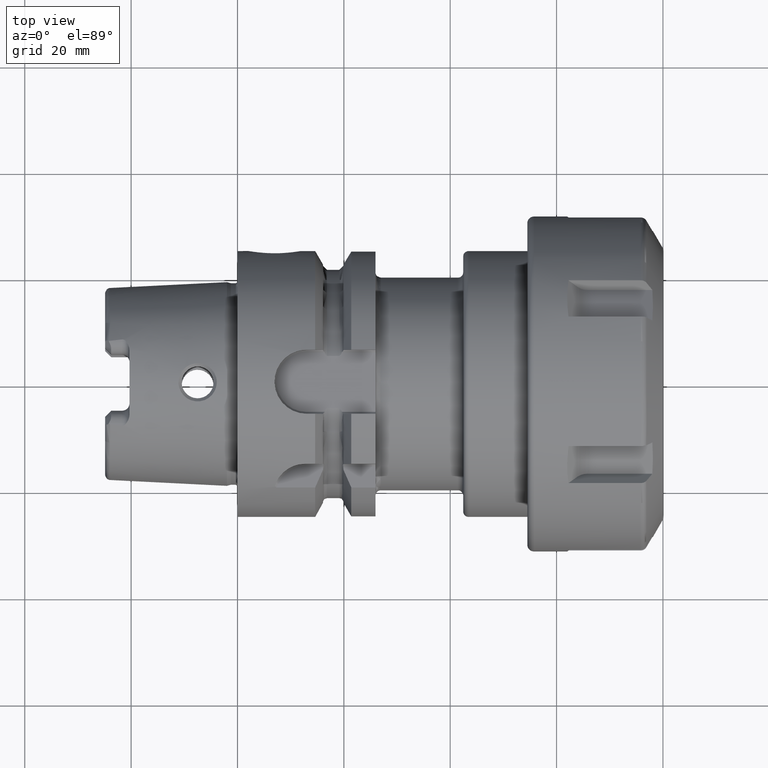
[diagram: clean part render]
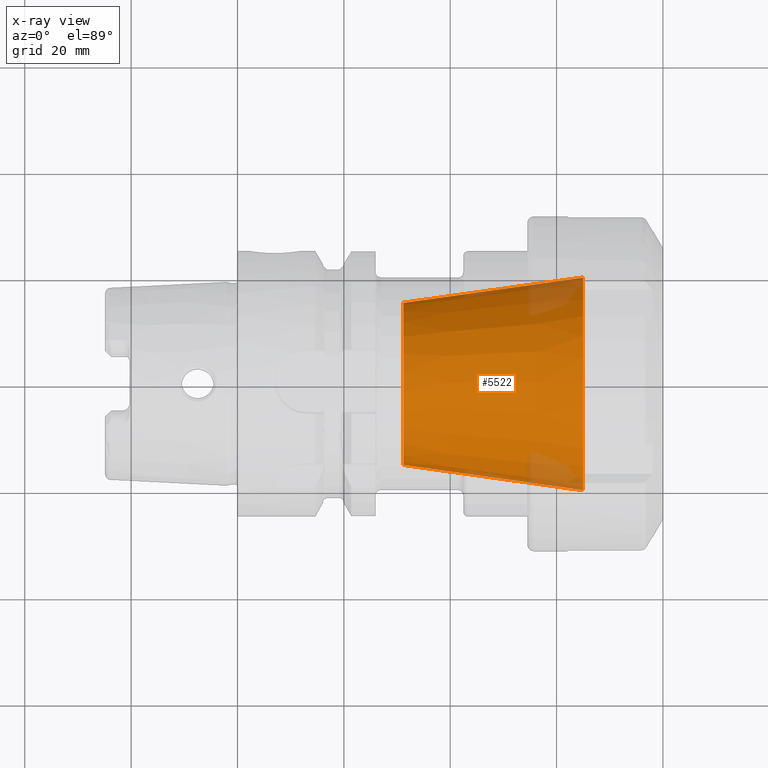
[diagram: x-ray — body ghosted, one internal face saturated and labeled with its STEP entity id]
A machine part, top view, then the same camera in x-ray: the body is ghosted and one INTERNAL B-rep face — a face not visible from any outside direction — is saturated and labeled: STEP entity #5522.
In plain terms, the highlighted conical surface has half-angle 8 deg.
Its self-contained STEP definition (entity closure, byte-faithful):
#2037=CARTESIAN_POINT('',(6.5E1,0.E0,0.E0));
#2038=DIRECTION('',(1.E0,0.E0,0.E0));
#2039=DIRECTION('',(0.E0,1.E0,0.E0));
#2040=AXIS2_PLACEMENT_3D('',#2037,#2038,#2039);
#2047=DIRECTION('',(-9.902680687416E-1,1.391731009601E-1,0.E0));
#2048=VECTOR('',#2047,3.413015853806E1);
#2049=CARTESIAN_POINT('',(6.5E1,-2.E1,0.E0));
#2050=LINE('',#2049,#2048);
#2051=DIRECTION('',(-9.902680687416E-1,-1.391731009601E-1,0.E0));
#2052=VECTOR('',#2051,3.413015853806E1);
#2053=CARTESIAN_POINT('',(6.5E1,2.E1,0.E0));
#2054=LINE('',#2053,#2052);
#2068=CARTESIAN_POINT('',(3.120199381868E1,0.E0,0.E0));
#2069=DIRECTION('',(1.E0,0.E0,0.E0));
#2070=DIRECTION('',(0.E0,1.E0,0.E0));
#2071=AXIS2_PLACEMENT_3D('',#2068,#2069,#2070);
#3315=CARTESIAN_POINT('',(3.120199381868E1,1.525E1,0.E0));
#3317=VERTEX_POINT('',#3315);
#3319=CARTESIAN_POINT('',(3.120199381868E1,-1.525E1,0.E0));
#3321=VERTEX_POINT('',#3319);
#3323=CARTESIAN_POINT('',(6.5E1,2.E1,0.E0));
#3324=CARTESIAN_POINT('',(6.5E1,-2.E1,0.E0));
#3325=VERTEX_POINT('',#3323);
#3326=VERTEX_POINT('',#3324);
#5508=CARTESIAN_POINT('',(4.810099690934E1,0.E0,0.E0));
#5509=DIRECTION('',(1.E0,0.E0,0.E0));
#5510=DIRECTION('',(0.E0,-1.E0,0.E0));
#5511=AXIS2_PLACEMENT_3D('',#5508,#5509,#5510);
#5512=CONICAL_SURFACE('',#5511,1.7625E1,8.E0);
#5513=ORIENTED_EDGE('',*,*,#5501,.F.);
#5515=ORIENTED_EDGE('',*,*,#5514,.T.);
#5517=ORIENTED_EDGE('',*,*,#5516,.T.);
#5519=ORIENTED_EDGE('',*,*,#5518,.F.);
#5520=EDGE_LOOP('',(#5513,#5515,#5517,#5519));
#5521=FACE_OUTER_BOUND('',#5520,.F.);
#5522=ADVANCED_FACE('',(#5521),#5512,.F.);
#2041=CIRCLE('',#2040,2.E1);
#2072=CIRCLE('',#2071,1.525E1);
#5501=EDGE_CURVE('',#3325,#3326,#2041,.T.);
#5514=EDGE_CURVE('',#3325,#3317,#2054,.T.);
#5516=EDGE_CURVE('',#3317,#3321,#2072,.T.);
#5518=EDGE_CURVE('',#3326,#3321,#2050,.T.);